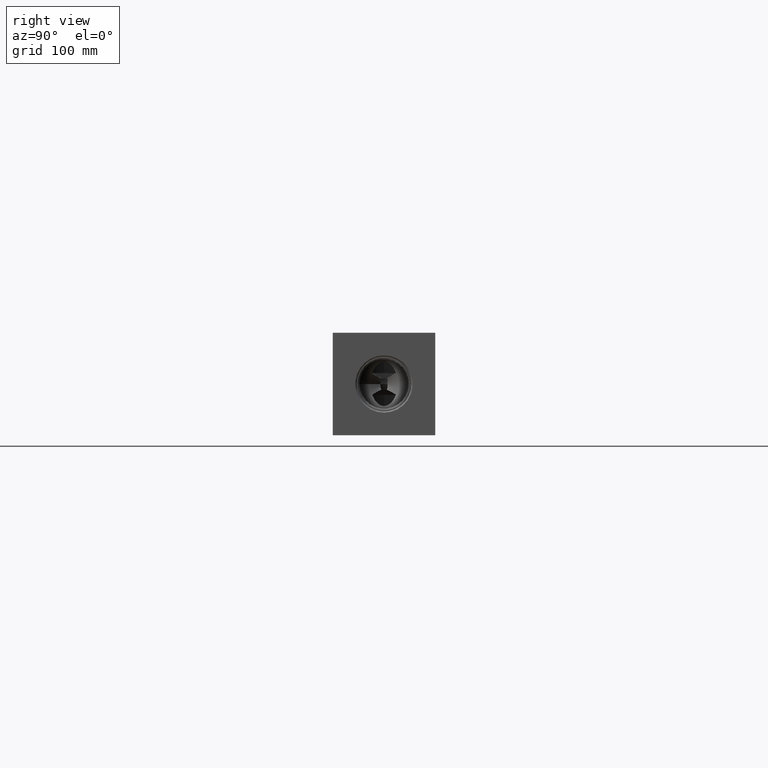
[diagram: clean part render]
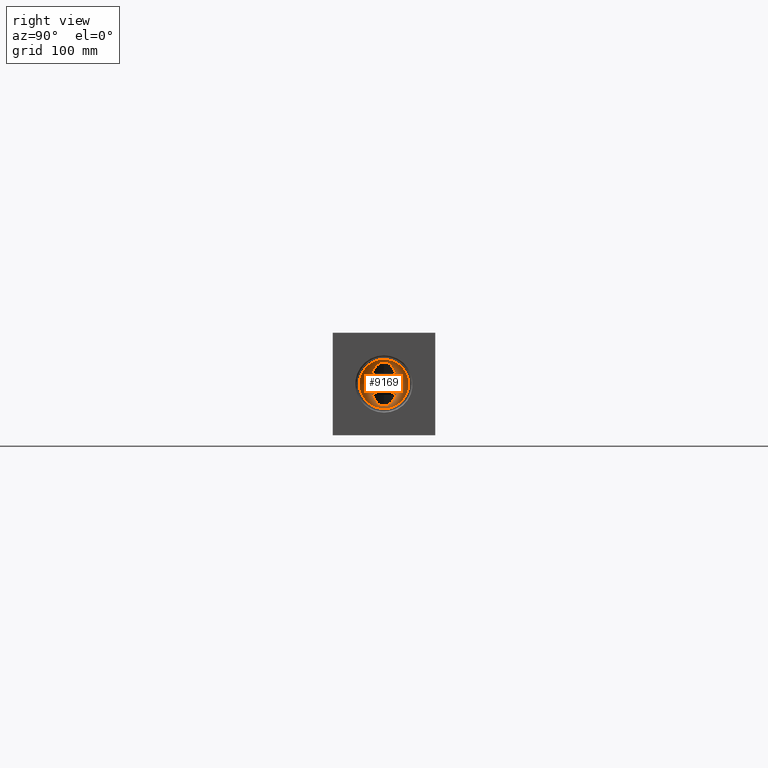
[diagram: same view with one face highlighted and labeled with its STEP entity id]
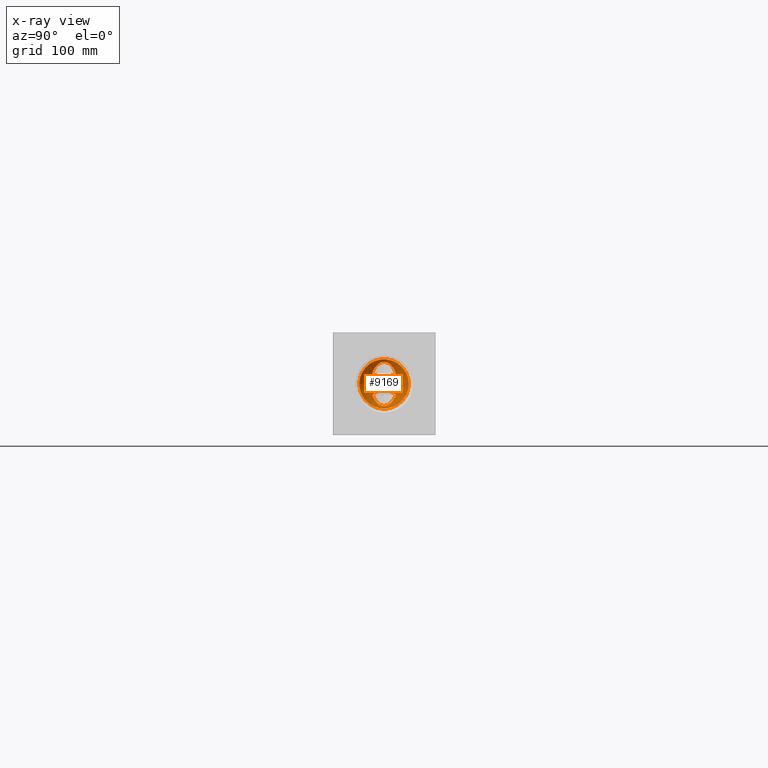
[diagram: x-ray of the same camera — body ghosted, the highlighted face saturated]
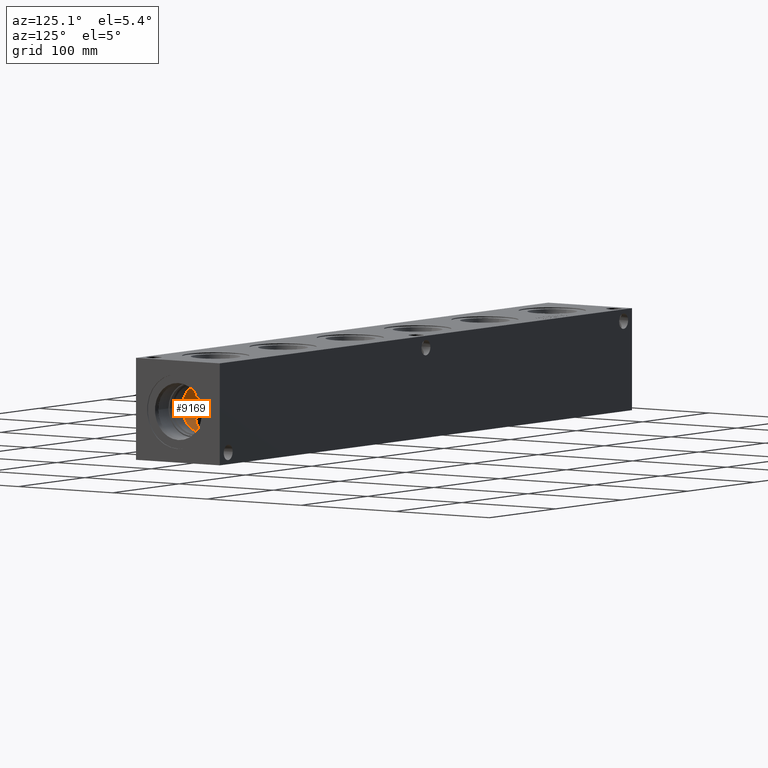
[diagram: same view with one face highlighted and labeled with its STEP entity id]
A machine part, right view. The second image highlights one B-rep face of the part: STEP entity #9169.
The next image is the same camera in x-ray: the body ghosted, the highlighted face saturated — about 0% of this face is hidden behind the body in this view.
A second angle (auxiliary view) of the same face is appended — the face is thin or edge-on in the first view.
In plain terms, the highlighted conical surface has half-angle 60 deg.
Its self-contained STEP definition (entity closure, byte-faithful):
#115=CONICAL_SURFACE('',#9603,10.7188,1.0471975511966);
#207=CIRCLE('',#9604,21.4376);
#208=CIRCLE('',#9605,21.4376);
#739=B_SPLINE_CURVE_WITH_KNOTS('',3,(#15434,#15435,#15436,#15437,#15438,
#15439,#15440,#15441,#15442,#15443,#15444,#15445,#15446,#15447,#15448,#15449,
#15450,#15451,#15452,#15453,#15454,#15455),.UNSPECIFIED.,.F.,.F.,(4,2,2,
2,2,2,2,2,2,2,4),(5.65804614751938,5.86799814580525,6.20600852675307,6.54401890770089,
6.83306145733421,7.12210400696752,7.41114655660084,7.70018910623416,8.03819948718197,
8.37620986812979,8.58616186641565),.UNSPECIFIED.);
#740=B_SPLINE_CURVE_WITH_KNOTS('',3,(#15459,#15460,#15461,#15462,#15463,
#15464,#15465,#15466),.UNSPECIFIED.,.F.,.F.,(4,2,2,4),(3.82502520633002,
3.98994951458755,4.43327723843061,5.02336071878949),.UNSPECIFIED.);
#741=B_SPLINE_CURVE_WITH_KNOTS('',3,(#15469,#15470,#15471,#15472,#15473,
#15474,#15475,#15476),.UNSPECIFIED.,.F.,.F.,(4,2,2,4),(2.0698828626995,
2.65996634305836,3.10329406690142,3.26821837515895),.UNSPECIFIED.);
#750=B_SPLINE_CURVE_WITH_KNOTS('',3,(#15583,#15584,#15585,#15586,#15587,
#15588,#15589,#15590,#15591,#15592),.UNSPECIFIED.,.F.,.F.,(4,2,2,2,4),(0.963727082277219,
1.02786096428721,1.1892771048369,1.35069324538659,1.47250445857949),
 .UNSPECIFIED.);
#751=B_SPLINE_CURVE_WITH_KNOTS('',3,(#15594,#15595,#15596,#15597,#15598,
#15599,#15600,#15601),.UNSPECIFIED.,.F.,.F.,(4,2,2,4),(3.82502520633004,
3.98994951458757,4.43327723843063,5.02336071878951),.UNSPECIFIED.);
#752=B_SPLINE_CURVE_WITH_KNOTS('',3,(#15603,#15604,#15605,#15606,#15607,
#15608,#15609,#15610,#15611,#15612,#15613,#15614,#15615,#15616,#15617,#15618,
#15619,#15620,#15621,#15622,#15623,#15624),.UNSPECIFIED.,.F.,.F.,(4,2,2,
2,2,2,2,2,2,2,4),(5.65804614751939,5.86799814580526,6.20600852675308,6.54401890770089,
6.83306145733421,7.12210400696753,7.41114655660084,7.70018910623416,8.03819948718198,
8.3762098681298,8.58616186641566),.UNSPECIFIED.);
#753=B_SPLINE_CURVE_WITH_KNOTS('',3,(#15626,#15627,#15628,#15629,#15630,
#15631,#15632,#15633),.UNSPECIFIED.,.F.,.F.,(4,2,2,4),(2.06988286269951,
2.65996634305838,3.10329406690145,3.26821837515897),.UNSPECIFIED.);
#754=B_SPLINE_CURVE_WITH_KNOTS('',3,(#15635,#15636,#15637,#15638,#15639,
#15640,#15641,#15642),.UNSPECIFIED.,.F.,.F.,(4,2,2,4),(0.,0.161416140549687,
0.322832281099374,0.386966163109366),.UNSPECIFIED.);
#755=B_SPLINE_CURVE_WITH_KNOTS('',3,(#15644,#15645,#15646,#15647),
 .UNSPECIFIED.,.F.,.F.,(4,4),(2.2436784002514,2.3654896134443),
 .UNSPECIFIED.);
#756=B_SPLINE_CURVE_WITH_KNOTS('',3,(#15648,#15649,#15650,#15651,#15652,
#15653,#15654,#15655,#15656,#15657),.UNSPECIFIED.,.F.,.F.,(4,2,2,2,4),(3.32921669572152,
3.39335057773151,3.5547667182812,3.71618285883088,3.8379940720538),
 .UNSPECIFIED.);
#757=B_SPLINE_CURVE_WITH_KNOTS('',3,(#15658,#15659,#15660,#15661,#15662,
#15663,#15664,#15665,#15666,#15667,#15668),.UNSPECIFIED.,.F.,.F.,(4,3,2,
2,4),(2.24367840022139,2.3654896134443,2.52690575399398,2.68832189454367,
2.75245577655366),.UNSPECIFIED.);
#1196=FACE_OUTER_BOUND('',#1721,.T.);
#1721=EDGE_LOOP('',(#7495,#7496,#7497,#7498,#7499,#7500,#7501,#7502,#7503,
#7504,#7505,#7506,#7507,#7508,#7509));
#2581=LINE('',#15581,#3367);
#3367=VECTOR('',#11183,10.7188);
#4117=VERTEX_POINT('',#15431);
#4118=VERTEX_POINT('',#15433);
#4119=VERTEX_POINT('',#15458);
#4120=VERTEX_POINT('',#15467);
#4130=VERTEX_POINT('',#15577);
#4131=VERTEX_POINT('',#15578);
#4132=VERTEX_POINT('',#15580);
#4133=VERTEX_POINT('',#15582);
#4134=VERTEX_POINT('',#15593);
#4135=VERTEX_POINT('',#15602);
#4136=VERTEX_POINT('',#15625);
#4137=VERTEX_POINT('',#15634);
#4138=VERTEX_POINT('',#15643);
#5286=EDGE_CURVE('',#4117,#4118,#739,.T.);
#5288=EDGE_CURVE('',#4119,#4118,#740,.T.);
#5290=EDGE_CURVE('',#4117,#4120,#741,.T.);
#5302=EDGE_CURVE('',#4130,#4131,#207,.T.);
#5303=EDGE_CURVE('',#4131,#4132,#2581,.T.);
#5304=EDGE_CURVE('',#4133,#4132,#750,.T.);
#5305=EDGE_CURVE('',#4133,#4134,#751,.T.);
#5306=EDGE_CURVE('',#4135,#4134,#752,.T.);
#5307=EDGE_CURVE('',#4135,#4136,#753,.T.);
#5308=EDGE_CURVE('',#4137,#4136,#754,.T.);
#5309=EDGE_CURVE('',#4138,#4137,#755,.T.);
#5310=EDGE_CURVE('',#4119,#4138,#756,.T.);
#5311=EDGE_CURVE('',#4132,#4120,#757,.T.);
#5312=EDGE_CURVE('',#4131,#4130,#208,.T.);
#7495=ORIENTED_EDGE('',*,*,#5302,.T.);
#7496=ORIENTED_EDGE('',*,*,#5303,.T.);
#7497=ORIENTED_EDGE('',*,*,#5304,.F.);
#7498=ORIENTED_EDGE('',*,*,#5305,.T.);
#7499=ORIENTED_EDGE('',*,*,#5306,.F.);
#7500=ORIENTED_EDGE('',*,*,#5307,.T.);
#7501=ORIENTED_EDGE('',*,*,#5308,.F.);
#7502=ORIENTED_EDGE('',*,*,#5309,.F.);
#7503=ORIENTED_EDGE('',*,*,#5310,.F.);
#7504=ORIENTED_EDGE('',*,*,#5288,.T.);
#7505=ORIENTED_EDGE('',*,*,#5286,.F.);
#7506=ORIENTED_EDGE('',*,*,#5290,.T.);
#7507=ORIENTED_EDGE('',*,*,#5311,.F.);
#7508=ORIENTED_EDGE('',*,*,#5303,.F.);
#7509=ORIENTED_EDGE('',*,*,#5312,.T.);
#9169=ADVANCED_FACE('',(#1196),#115,.F.);
#9603=AXIS2_PLACEMENT_3D('',#15576,#11179,#11180);
#9604=AXIS2_PLACEMENT_3D('',#15579,#11181,#11182);
#9605=AXIS2_PLACEMENT_3D('',#15669,#11184,#11185);
#11179=DIRECTION('center_axis',(1.,0.,0.));
#11180=DIRECTION('ref_axis',(0.,1.,0.));
#11181=DIRECTION('center_axis',(1.,0.,0.));
#11182=DIRECTION('ref_axis',(0.,1.,0.));
#11183=DIRECTION('',(-0.5,0.866025403784439,1.06057523872491E-16));
#11184=DIRECTION('center_axis',(1.,0.,0.));
#11185=DIRECTION('ref_axis',(0.,1.,0.));
#15431=CARTESIAN_POINT('',(581.193426336425,34.1781466430005,35.05432));
#15433=CARTESIAN_POINT('',(581.193426336425,54.7218533569996,35.05432));
#15434=CARTESIAN_POINT('Ctrl Pts',(581.193426336425,34.1781466430004,35.05432));
#15435=CARTESIAN_POINT('Ctrl Pts',(581.351550062569,34.425117298077,34.3785346806464));
#15436=CARTESIAN_POINT('Ctrl Pts',(581.516989787121,34.6962667660449,33.7284409813775));
#15437=CARTESIAN_POINT('Ctrl Pts',(581.949319485886,35.45147240054,32.122511820207));
#15438=CARTESIAN_POINT('Ctrl Pts',(582.257713525749,36.0361179420128,31.0764675994803));
#15439=CARTESIAN_POINT('Ctrl Pts',(582.867366535572,37.4099570315538,29.1369300481692));
#15440=CARTESIAN_POINT('Ctrl Pts',(583.166971028151,38.2011968043169,28.2443670805116));
#15441=CARTESIAN_POINT('Ctrl Pts',(583.625559534201,39.7479545641076,26.9154297060635));
#15442=CARTESIAN_POINT('Ctrl Pts',(583.832153813471,40.6064739022557,26.3358280554377));
#15443=CARTESIAN_POINT('Ctrl Pts',(584.120829432664,42.4743463732189,25.5361425730145));
#15444=CARTESIAN_POINT('Ctrl Pts',(584.2,43.4865248345556,25.3216220981749));
#15445=CARTESIAN_POINT('Ctrl Pts',(584.2,45.4134751654444,25.3216220981749));
#15446=CARTESIAN_POINT('Ctrl Pts',(584.120829432664,46.4256536267811,25.5361425730144));
#15447=CARTESIAN_POINT('Ctrl Pts',(583.832153813471,48.2935260977443,26.3358280554377));
#15448=CARTESIAN_POINT('Ctrl Pts',(583.625559534201,49.1520454358924,26.9154297060636));
#15449=CARTESIAN_POINT('Ctrl Pts',(583.166971028151,50.6988031956831,28.2443670805117));
#15450=CARTESIAN_POINT('Ctrl Pts',(582.867366535572,51.4900429684462,29.1369300481692));
#15451=CARTESIAN_POINT('Ctrl Pts',(582.257713525749,52.8638820579872,31.0764675994804));
#15452=CARTESIAN_POINT('Ctrl Pts',(581.949319485886,53.44852759946,32.122511820207));
#15453=CARTESIAN_POINT('Ctrl Pts',(581.516989787121,54.2037332339551,33.7284409813775));
#15454=CARTESIAN_POINT('Ctrl Pts',(581.351550062569,54.474882701923,34.3785346806464));
#15455=CARTESIAN_POINT('Ctrl Pts',(581.193426336425,54.7218533569996,35.05432));
#15458=CARTESIAN_POINT('',(576.313326337598,46.721092666612,39.4756670375238));
#15459=CARTESIAN_POINT('Ctrl Pts',(576.313326357653,46.7210926495125,39.4756670136075));
#15460=CARTESIAN_POINT('Ctrl Pts',(576.479075344271,47.1091147879286,39.3372314896286));
#15461=CARTESIAN_POINT('Ctrl Pts',(576.662053323613,47.478812174025,39.1823226404211));
#15462=CARTESIAN_POINT('Ctrl Pts',(577.376194817041,48.8311902286343,38.5688149099059));
#15463=CARTESIAN_POINT('Ctrl Pts',(577.958077161744,49.775663494659,38.0523326244484));
#15464=CARTESIAN_POINT('Ctrl Pts',(579.401430951373,52.0508770858947,36.7398680286058));
#15465=CARTESIAN_POINT('Ctrl Pts',(580.279204584774,53.3679846772634,35.9203147896928));
#15466=CARTESIAN_POINT('Ctrl Pts',(581.193426336425,54.7218533569995,35.05432));
#15467=CARTESIAN_POINT('',(576.313326337598,42.178907333388,39.4756670375238));
#15469=CARTESIAN_POINT('Ctrl Pts',(581.193426336425,34.1781466430005,35.05432));
#15470=CARTESIAN_POINT('Ctrl Pts',(580.279204584774,35.5320153227366,35.9203147896928));
#15471=CARTESIAN_POINT('Ctrl Pts',(579.401430951373,36.8491229141053,36.7398680286058));
#15472=CARTESIAN_POINT('Ctrl Pts',(577.958077161744,39.1243365053409,38.0523326244484));
#15473=CARTESIAN_POINT('Ctrl Pts',(577.376194817041,40.0688097713657,38.5688149099059));
#15474=CARTESIAN_POINT('Ctrl Pts',(576.662053323613,41.4211878259751,39.1823226404211));
#15475=CARTESIAN_POINT('Ctrl Pts',(576.47907534427,41.7908852120715,39.3372314896286));
#15476=CARTESIAN_POINT('Ctrl Pts',(576.313326357653,42.1789073504875,39.4756670136075));
#15576=CARTESIAN_POINT('Origin',(579.34472793461,44.45,44.45));
#15577=CARTESIAN_POINT('',(585.53323,65.8876,44.45));
#15578=CARTESIAN_POINT('',(585.53323,23.0124,44.45));
#15579=CARTESIAN_POINT('Origin',(585.53323,44.45,44.45));
#15580=CARTESIAN_POINT('',(574.798548991521,41.6054129096704,44.4500000001603));
#15581=CARTESIAN_POINT('',(579.34472793461,33.7312,44.45));
#15582=CARTESIAN_POINT('',(576.313326337598,42.178907333388,49.4243329624762));
#15583=CARTESIAN_POINT('Ctrl Pts',(576.313326343767,42.1789073321331,49.4243329515727));
#15584=CARTESIAN_POINT('Ctrl Pts',(576.239427141478,42.0709986743043,49.2343593027166));
#15585=CARTESIAN_POINT('Ctrl Pts',(576.165570823208,41.9770744525634,49.0412291525989));
#15586=CARTESIAN_POINT('Ctrl Pts',(575.92047945511,41.6966529809767,48.3881231169952));
#15587=CARTESIAN_POINT('Ctrl Pts',(575.728785384367,41.5383288928661,47.8542414949243));
#15588=CARTESIAN_POINT('Ctrl Pts',(575.369617716743,41.3539396607785,46.7574267557703));
#15589=CARTESIAN_POINT('Ctrl Pts',(575.202975326754,41.328412588379,46.1941312444813));
#15590=CARTESIAN_POINT('Ctrl Pts',(574.96961773638,41.4008733368479,45.2822091921764));
#15591=CARTESIAN_POINT('Ctrl Pts',(574.874167887063,41.4744371406644,44.8589227757729));
#15592=CARTESIAN_POINT('Ctrl Pts',(574.798548991563,41.6054129096583,44.4500000001718));
#15593=CARTESIAN_POINT('',(581.193426336425,34.1781466430005,53.84568));
#15594=CARTESIAN_POINT('Ctrl Pts',(576.313326357653,42.1789073504875,49.4243329863925));
#15595=CARTESIAN_POINT('Ctrl Pts',(576.47907534427,41.7908852120715,49.5627685103714));
#15596=CARTESIAN_POINT('Ctrl Pts',(576.662053323613,41.4211878259751,49.7176773595789));
#15597=CARTESIAN_POINT('Ctrl Pts',(577.376194817041,40.0688097713657,50.3311850900941));
#15598=CARTESIAN_POINT('Ctrl Pts',(577.958077161744,39.124336505341,50.8476673755516));
#15599=CARTESIAN_POINT('Ctrl Pts',(579.401430951373,36.8491229141053,52.1601319713942));
#15600=CARTESIAN_POINT('Ctrl Pts',(580.279204584774,35.5320153227366,52.9796852103072));
#15601=CARTESIAN_POINT('Ctrl Pts',(581.193426336425,34.1781466430005,53.84568));
#15602=CARTESIAN_POINT('',(581.193426336425,54.7218533569996,53.84568));
#15603=CARTESIAN_POINT('Ctrl Pts',(581.193426336425,54.7218533569996,53.84568));
#15604=CARTESIAN_POINT('Ctrl Pts',(581.351550062569,54.474882701923,54.5214653193536));
#15605=CARTESIAN_POINT('Ctrl Pts',(581.516989787121,54.2037332339551,55.1715590186225));
#15606=CARTESIAN_POINT('Ctrl Pts',(581.949319485886,53.44852759946,56.777488179793));
#15607=CARTESIAN_POINT('Ctrl Pts',(582.257713525749,52.8638820579872,57.8235324005196));
#15608=CARTESIAN_POINT('Ctrl Pts',(582.867366535572,51.4900429684462,59.7630699518308));
#15609=CARTESIAN_POINT('Ctrl Pts',(583.166971028151,50.6988031956831,60.6556329194883));
#15610=CARTESIAN_POINT('Ctrl Pts',(583.625559534201,49.1520454358924,61.9845702939364));
#15611=CARTESIAN_POINT('Ctrl Pts',(583.832153813471,48.2935260977443,62.5641719445623));
#15612=CARTESIAN_POINT('Ctrl Pts',(584.120829432664,46.4256536267811,63.3638574269856));
#15613=CARTESIAN_POINT('Ctrl Pts',(584.2,45.4134751654444,63.5783779018251));
#15614=CARTESIAN_POINT('Ctrl Pts',(584.2,43.4865248345556,63.5783779018251));
#15615=CARTESIAN_POINT('Ctrl Pts',(584.120829432664,42.4743463732189,63.3638574269855));
#15616=CARTESIAN_POINT('Ctrl Pts',(583.832153813471,40.6064739022557,62.5641719445623));
#15617=CARTESIAN_POINT('Ctrl Pts',(583.625559534201,39.7479545641076,61.9845702939365));
#15618=CARTESIAN_POINT('Ctrl Pts',(583.166971028151,38.2011968043169,60.6556329194884));
#15619=CARTESIAN_POINT('Ctrl Pts',(582.867366535572,37.4099570315538,59.7630699518308));
#15620=CARTESIAN_POINT('Ctrl Pts',(582.257713525749,36.0361179420128,57.8235324005197));
#15621=CARTESIAN_POINT('Ctrl Pts',(581.949319485886,35.45147240054,56.777488179793));
#15622=CARTESIAN_POINT('Ctrl Pts',(581.516989787121,34.6962667660449,55.1715590186225));
#15623=CARTESIAN_POINT('Ctrl Pts',(581.351550062569,34.425117298077,54.5214653193537));
#15624=CARTESIAN_POINT('Ctrl Pts',(581.193426336425,34.1781466430004,53.84568));
#15625=CARTESIAN_POINT('',(576.313326337598,46.721092666612,49.4243329624762));
#15626=CARTESIAN_POINT('Ctrl Pts',(581.193426336425,54.7218533569995,53.84568));
#15627=CARTESIAN_POINT('Ctrl Pts',(580.279204584774,53.3679846772634,52.9796852103072));
#15628=CARTESIAN_POINT('Ctrl Pts',(579.401430951373,52.0508770858947,52.1601319713942));
#15629=CARTESIAN_POINT('Ctrl Pts',(577.958077161744,49.775663494659,50.8476673755515));
#15630=CARTESIAN_POINT('Ctrl Pts',(577.376194817041,48.8311902286343,50.331185090094));
#15631=CARTESIAN_POINT('Ctrl Pts',(576.662053323613,47.478812174025,49.7176773595789));
#15632=CARTESIAN_POINT('Ctrl Pts',(576.47907534427,47.1091147879285,49.5627685103714));
#15633=CARTESIAN_POINT('Ctrl Pts',(576.313326357653,46.7210926495126,49.4243329863925));
#15634=CARTESIAN_POINT('',(575.069980822133,47.5302907847075,45.6744111813585));
#15635=CARTESIAN_POINT('Ctrl Pts',(575.069980822133,47.5302907847075,45.6744111813585));
#15636=CARTESIAN_POINT('Ctrl Pts',(575.202975326754,47.571587411621,46.1941312444813));
#15637=CARTESIAN_POINT('Ctrl Pts',(575.369617716743,47.5460603392215,46.7574267557703));
#15638=CARTESIAN_POINT('Ctrl Pts',(575.728785384367,47.3616711071339,47.8542414949243));
#15639=CARTESIAN_POINT('Ctrl Pts',(575.92047945511,47.2033470190233,48.3881231169952));
#15640=CARTESIAN_POINT('Ctrl Pts',(576.165570823208,46.9229255474366,49.0412291525989));
#15641=CARTESIAN_POINT('Ctrl Pts',(576.239427141478,46.8290013256957,49.2343593027166));
#15642=CARTESIAN_POINT('Ctrl Pts',(576.313326343767,46.721092667867,49.4243329515726));
#15643=CARTESIAN_POINT('',(574.798548991521,47.2945870903296,44.4500000001603));
#15644=CARTESIAN_POINT('Ctrl Pts',(574.798548991563,47.2945870903418,44.4500000001718));
#15645=CARTESIAN_POINT('Ctrl Pts',(574.874167887063,47.4255628593356,44.858922775773));
#15646=CARTESIAN_POINT('Ctrl Pts',(574.96961773638,47.4991266631521,45.2822091921764));
#15647=CARTESIAN_POINT('Ctrl Pts',(575.069980822133,47.5302907847075,45.6744111813585));
#15648=CARTESIAN_POINT('Ctrl Pts',(576.313326343767,46.721092667867,39.4756670484274));
#15649=CARTESIAN_POINT('Ctrl Pts',(576.239427141478,46.8290013256957,39.6656406972834));
#15650=CARTESIAN_POINT('Ctrl Pts',(576.165570823208,46.9229255474366,39.8587708474011));
#15651=CARTESIAN_POINT('Ctrl Pts',(575.92047945511,47.2033470190233,40.5118768830048));
#15652=CARTESIAN_POINT('Ctrl Pts',(575.728785384367,47.3616711071339,41.0457585050758));
#15653=CARTESIAN_POINT('Ctrl Pts',(575.369617716743,47.5460603392215,42.1425732442297));
#15654=CARTESIAN_POINT('Ctrl Pts',(575.202975326754,47.571587411621,42.7058687555187));
#15655=CARTESIAN_POINT('Ctrl Pts',(574.969617736355,47.4991266631444,43.6177908079203));
#15656=CARTESIAN_POINT('Ctrl Pts',(574.874167887016,47.4255628592985,44.0410772244356));
#15657=CARTESIAN_POINT('Ctrl Pts',(574.798548991507,47.2945870902449,44.4500000001305));
#15658=CARTESIAN_POINT('Ctrl Pts',(574.798548991507,41.6054129097551,44.4500000001304));
#15659=CARTESIAN_POINT('Ctrl Pts',(574.874167887016,41.4744371407015,44.0410772244355));
#15660=CARTESIAN_POINT('Ctrl Pts',(574.969617736355,41.4008733368556,43.6177908079202));
#15661=CARTESIAN_POINT('Ctrl Pts',(575.069980822133,41.3697092152924,43.2255888186415));
#15662=CARTESIAN_POINT('Ctrl Pts',(575.202975326754,41.328412588379,42.7058687555187));
#15663=CARTESIAN_POINT('Ctrl Pts',(575.369617716743,41.3539396607785,42.1425732442297));
#15664=CARTESIAN_POINT('Ctrl Pts',(575.728785384367,41.5383288928661,41.0457585050758));
#15665=CARTESIAN_POINT('Ctrl Pts',(575.92047945511,41.6966529809767,40.5118768830048));
#15666=CARTESIAN_POINT('Ctrl Pts',(576.165570823208,41.9770744525634,39.8587708474011));
#15667=CARTESIAN_POINT('Ctrl Pts',(576.239427141478,42.0709986743043,39.6656406972834));
#15668=CARTESIAN_POINT('Ctrl Pts',(576.313326343767,42.178907332133,39.4756670484273));
#15669=CARTESIAN_POINT('Origin',(585.53323,44.45,44.45));